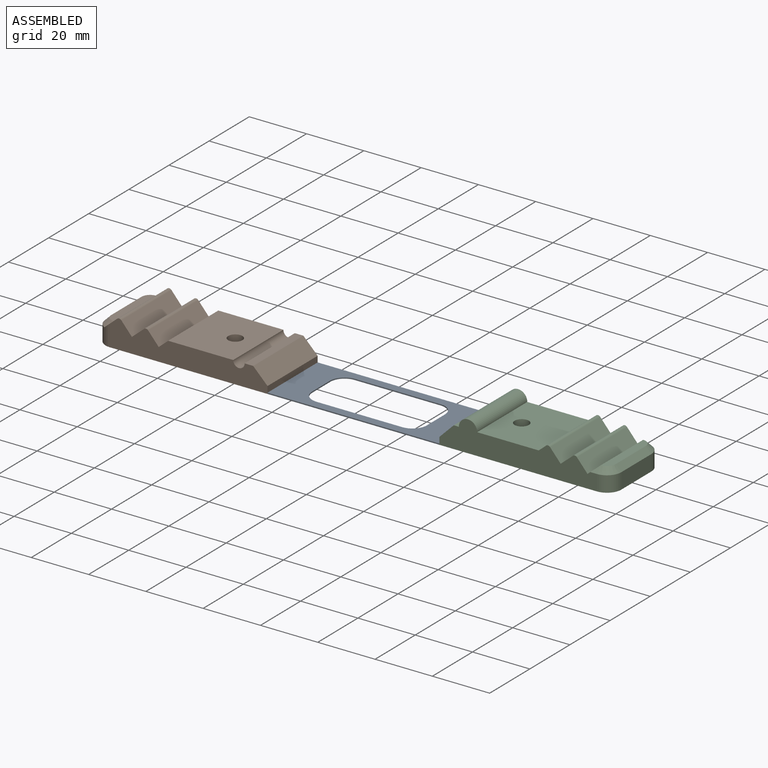
[diagram: assembled view]
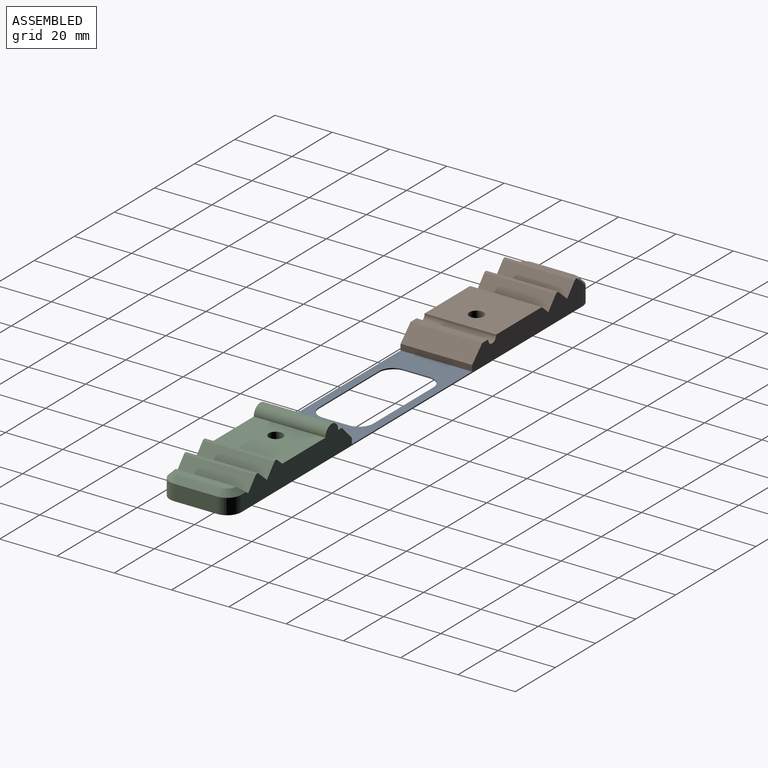
[diagram: assembled view, second angle]
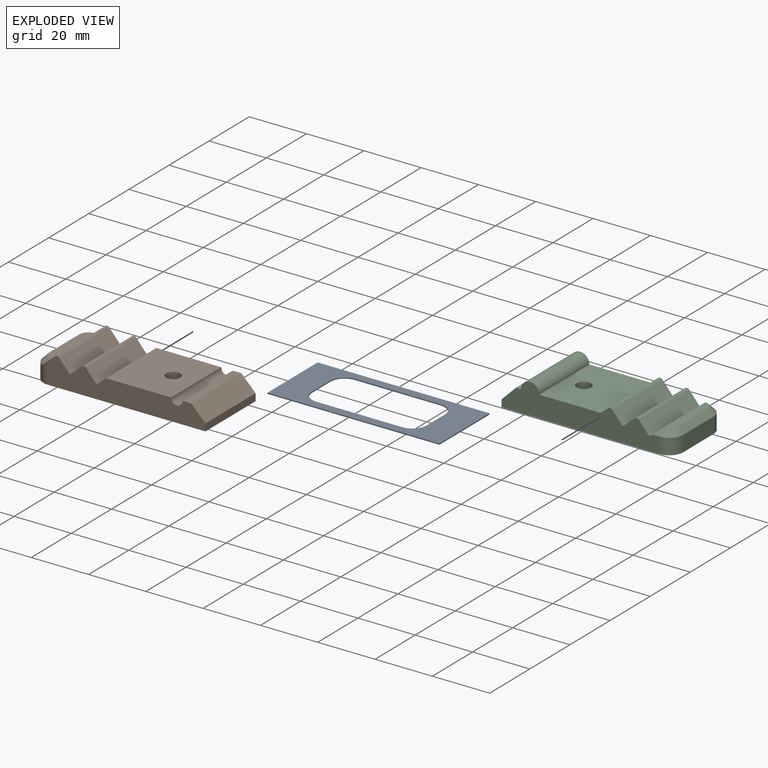
[diagram: exploded view]
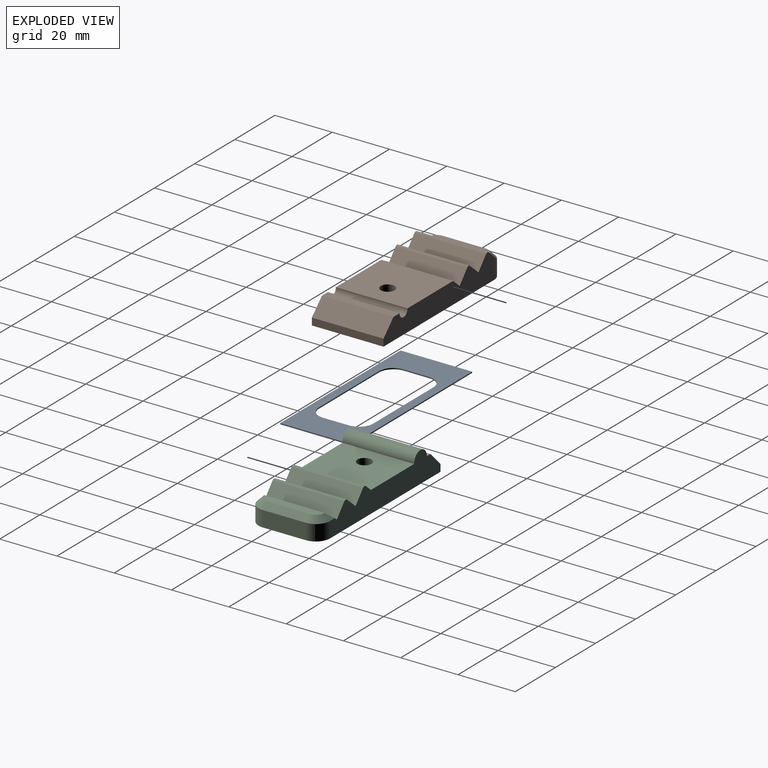
[diagram: exploded view, second angle]
ASSEMBLY  parts=3 mates=2
PART A: 14 faces, bbox 60x25x0.4 mm
  f0: cylinder r=5mm len=5mm, axis (0,0,-1), area 3.1mm2, adj f1,f11,f12,f13
  f1: plane 9x0.4mm, normal (1,0,0), area 3.6mm2, adj f0,f2,f12,f13
  f2: cylinder r=5mm len=5mm, axis (0,0,-1), area 3.1mm2, adj f1,f3,f12,f13
  f3: plane 30x0.4mm, normal (0,-1,0), area 12mm2, adj f2,f4,f12,f13
  f4: cylinder r=5mm len=5mm, axis (0,0,-1), area 3.1mm2, adj f3,f5,f12,f13
  f5: plane 9x0.4mm, normal (-1,0,0), area 3.6mm2, adj f4,f6,f12,f13
  f6: cylinder r=5mm len=5mm, axis (0,0,-1), area 3.1mm2, adj f5,f11,f12,f13
  f7: plane 25x0.4mm, normal (-1,0,0), area 10mm2, adj f8,f10,f12,f13
  f8: plane 60x0.4mm, normal (0,-1,0), area 24mm2, adj f7,f9,f12,f13
  f9: plane 25x0.4mm, normal (1,0,0), area 10mm2, adj f8,f10,f12,f13
  f10: plane 60x0.4mm, normal (0,1,0), area 24mm2, adj f7,f9,f12,f13
  f11: plane 30x0.4mm, normal (0,1,0), area 12mm2, adj f0,f6,f12,f13
  f12: plane 60x25mm, normal (0,0,1), area 761.5mm2, adj f0,f1,f2,f3,f4,f5,f6,f7
  f13: plane 60x25mm, normal (0,0,-1), area 761.5mm2, adj f0,f1,f2,f3,f4,f5,f6,f7
PART B: 23 faces, bbox 60x25x9.9 mm
  f0: plane 21x3mm, normal (0,0,1), area 59.1mm2, adj f1,f18,f19,f20
  f1: plane 25x4.87mm, normal (-0.65,0,0.76), area 90.6mm2, adj f0,f11,f12,f13,f15,f18,f20,f21
  f2: plane 25x4.27mm, normal (0.76,0,0.65), area 141.1mm2, adj f3,f12,f15,f21
  f3: plane 25x4.27mm, normal (-0.65,0,0.76), area 141.1mm2, adj f2,f12,f15,f22
  f4: plane 25x4.27mm, normal (0.76,0,0.65), area 141.1mm2, adj f5,f12,f15,f22
  f5: plane 25x3.31mm, normal (-0.65,0,0.76), area 109.3mm2, adj f4,f6,f12,f15
  f6: plane 25x22.7mm, normal (0,0,1), area 547.8mm2, adj f5,f7,f12,f15,f16
  f7: cylinder r=2mm len=25mm, axis (0,1,0), area 157.1mm2, adj f6,f8,f12,f15
  f8: plane 25x2.97mm, normal (0,0,1), area 74.3mm2, adj f7,f12,f15,f17
  f9: plane 60x25mm, normal (0,0,-1), area 1469.6mm2, adj f10,f11,f12,f13,f14,f15,f16
  f10: plane 25x2.5mm, normal (1,0,0), area 62.5mm2, adj f9,f12,f15,f17
  f11: cylinder r=5mm len=7.5mm, axis (0,0,-1), area 45.6mm2, adj f1,f9,f12,f14,f20
  f12: plane 55x9.95mm, normal (0,-1,0), area 393.3mm2, adj f1,f2,f3,f4,f5,f6,f7,f8
  f13: cylinder r=5mm len=7.5mm, axis (0,0,1), area 45.6mm2, adj f1,f9,f14,f15,f18
  f14: plane 15x5.5mm, normal (-1,0,0), area 82.5mm2, adj f9,f11,f13,f19
  f15: plane 55x9.95mm, normal (0,1,0), area 393.3mm2, adj f1,f2,f3,f4,f5,f6,f7,f8
  f16: cylinder r=2.5mm len=7.5mm, axis (0,0,1), area 117.8mm2, adj f6,f9
  f17: plane 25x5mm, normal (0.71,0,0.71), area 176.8mm2, adj f8,f10,f12,f15
  f18: cone r=3mm half-angle=45deg, axis (0,0,-1), area 14.4mm2, adj f0,f1,f13,f19
  f19: plane 15x2mm, normal (-0.71,0,0.71), area 42.4mm2, adj f0,f14,f18,f20
  f20: cone r=3mm half-angle=45deg, axis (0,0,-1), area 14.4mm2, adj f0,f1,f11,f19
  f21: cylinder r=1mm len=25mm, axis (0,1,0), area 39.3mm2, adj f1,f2,f12,f15
  f22: cylinder r=1mm len=25mm, axis (0,1,0), area 39.3mm2, adj f3,f4,f12,f15
PART C: 25 faces, bbox 60x25x10.7 mm
  f0: plane 55x10.7mm, normal (0,1,0), area 413.3mm2, adj f3,f4,f5,f8,f9,f10,f11,f12
  f1: plane 15x5.5mm, normal (-1,0,0), area 82.5mm2, adj f4,f5,f6,f20
  f2: plane 55x10.7mm, normal (0,-1,0), area 413.3mm2, adj f3,f4,f6,f8,f9,f10,f11,f12
  f3: plane 25x2.5mm, normal (1,0,0), area 62.5mm2, adj f0,f2,f4,f17
  f4: plane 60x25mm, normal (0,0,1), area 1469.6mm2, adj f0,f1,f2,f3,f5,f6,f16
  f5: cylinder r=5mm len=5.5mm, axis (0,0,1), area 43.2mm2, adj f0,f1,f4,f22
  f6: cylinder r=5mm len=5.5mm, axis (0,0,-1), area 43.2mm2, adj f1,f2,f4,f19
  f7: plane 21x3mm, normal (0,0,-1), area 59.1mm2, adj f8,f19,f20,f22
  f8: plane 25x3.31mm, normal (0.65,0,-0.76), area 103.2mm2, adj f0,f2,f7,f9,f18,f21
  f9: plane 25x4.27mm, normal (-0.76,0,-0.65), area 141.1mm2, adj f0,f2,f8,f23
  f10: plane 25x4.27mm, normal (0.65,0,-0.76), area 141.1mm2, adj f0,f2,f11,f23
  f11: plane 25x4.27mm, normal (-0.76,0,-0.65), area 141.1mm2, adj f0,f2,f10,f24
  f12: plane 25x2.55mm, normal (0.65,0,-0.76), area 84.3mm2, adj f0,f2,f13,f24
  f13: plane 25x21.5mm, normal (0,0,-1), area 517.8mm2, adj f0,f2,f12,f14,f16
  f14: cylinder r=3.2mm len=25mm, axis (0,1,0), area 251.3mm2, adj f0,f2,f13,f15
  f15: plane 25x1.77mm, normal (0,0,-1), area 44.3mm2, adj f0,f2,f14,f17
  f16: cylinder r=2.5mm len=7.5mm, axis (0,0,1), area 117.8mm2, adj f4,f13
  f17: plane 25x5mm, normal (0.71,0,-0.71), area 176.8mm2, adj f0,f2,f3,f15
  f18: plane 2.32x2mm, normal (0,-0.71,-0.71), area 3.3mm2, adj f2,f8,f19
  f19: cone r=3mm half-angle=45deg, axis (0,0,1), area 17.8mm2, adj f6,f7,f18,f20
  f20: plane 15x2mm, normal (-0.71,0,-0.71), area 42.4mm2, adj f1,f7,f19,f22
  f21: plane 2.32x2mm, normal (0,0.71,-0.71), area 3.3mm2, adj f0,f8,f22
  f22: cone r=3mm half-angle=45deg, axis (0,0,1), area 17.8mm2, adj f5,f7,f20,f21
  f23: cylinder r=1mm len=25mm, axis (0,1,0), area 39.3mm2, adj f0,f2,f9,f10
  f24: cylinder r=1mm len=25mm, axis (0,1,0), area 39.3mm2, adj f0,f2,f11,f12
PLACE A t=(-94.77,-2.92,15.09)mm
PLACE B t=(-94.77,-2.92,15.09)mm
PLACE C rot(axis=(0,1,0),180deg) t=(25.23,-2.92,30.09)mm
MATE fastened C.f2 <-> A.f8  axis (0,-1,0) through (-4.77,-15.42,15.09)mm
MATE fastened A.f8 <-> B.f12  axis (0,1,0) through (-64.77,-15.42,15.09)mm
